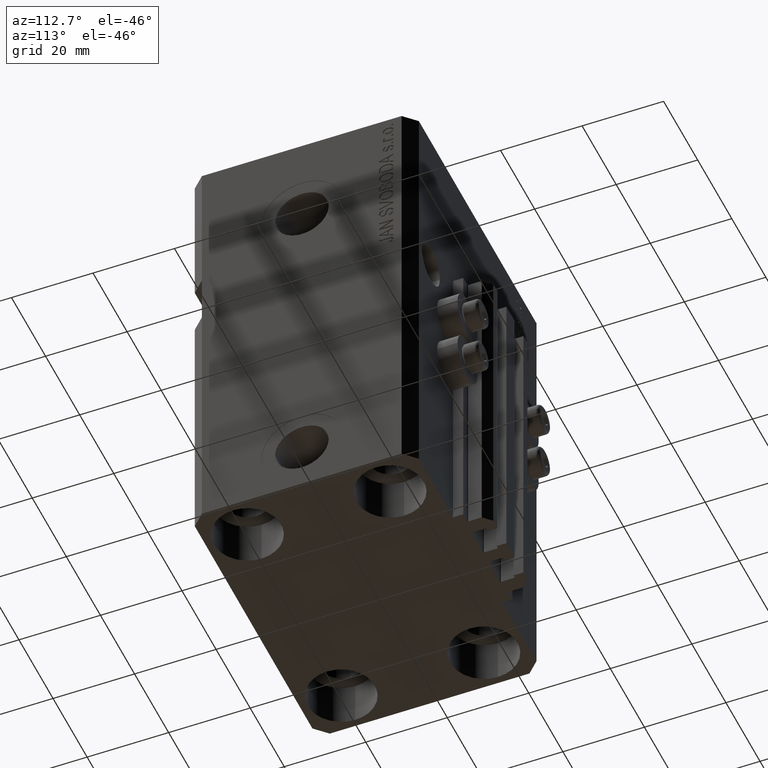
[diagram: clean part render]
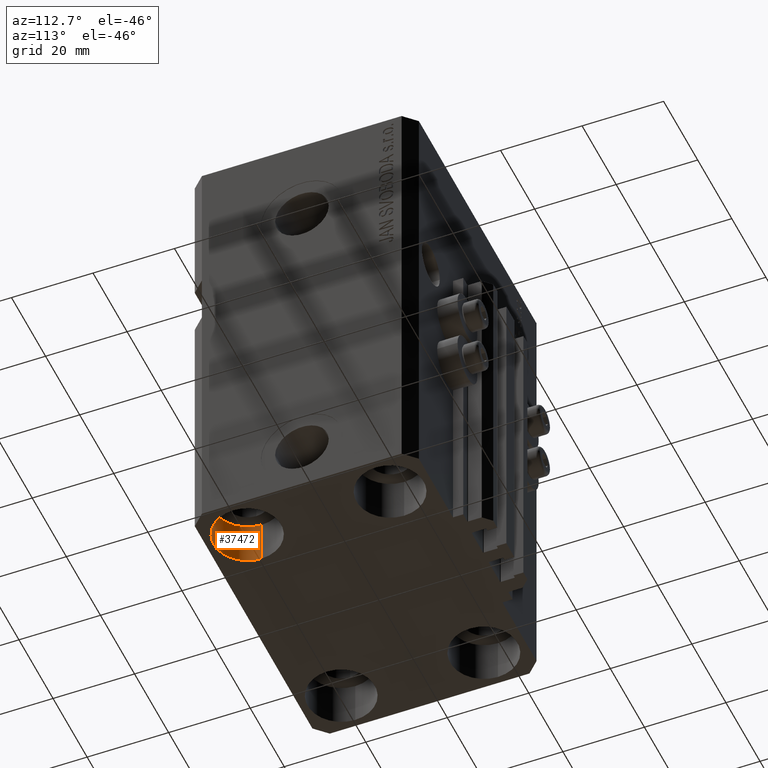
[diagram: same view with one face highlighted and labeled with its STEP entity id]
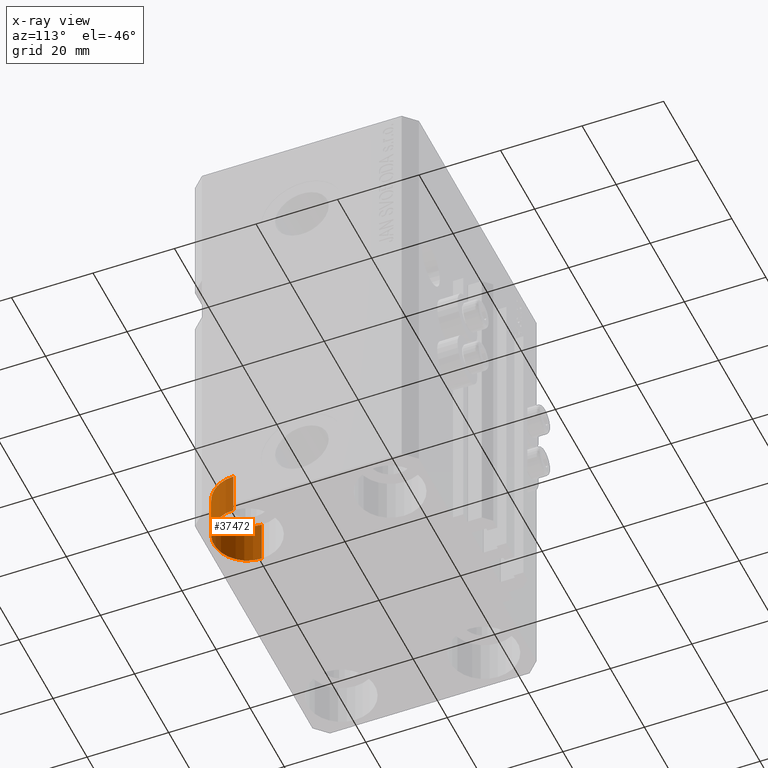
[diagram: x-ray of the same camera — body ghosted, the highlighted face saturated]
A machine part, auxiliary view. The second image highlights one B-rep face of the part: STEP entity #37472.
The next image is the same camera in x-ray: the body ghosted, the highlighted face saturated — about 0% of this face is hidden behind the body in this view.
In plain terms, the highlighted cylindrical surface (edge-blend (fillet) strip) has radius 8.25 mm, axis along (-0, -0, -1).
Its self-contained STEP definition (entity closure, byte-faithful):
#1842 = CARTESIAN_POINT ( 'NONE',  ( 35.75000000000000711, -17.50000000000000000, -99.00000000000000000 ) ) ;
#2335 = DIRECTION ( 'NONE',  ( -0.000000000000000000, -0.000000000000000000, 1.000000000000000000 ) ) ;
#2576 = DIRECTION ( 'NONE',  ( 1.000000000000000000, 0.000000000000000000, 0.000000000000000000 ) ) ;
#3122 = ORIENTED_EDGE ( 'NONE', *, *, #40701, .F. ) ;
#3440 = CARTESIAN_POINT ( 'NONE',  ( 19.25000000000000000, -17.50000000000000000, -99.00000000000000000 ) ) ;
#4888 = EDGE_LOOP ( 'NONE', ( #13530, #20899, #27249, #3122 ) ) ;
#5071 = VERTEX_POINT ( 'NONE', #16232 ) ;
#5879 = AXIS2_PLACEMENT_3D ( 'NONE', #30035, #30505, #44955 ) ;
#5974 = EDGE_CURVE ( 'NONE', #25708, #5071, #14841, .T. ) ;
#5994 = AXIS2_PLACEMENT_3D ( 'NONE', #34752, #2335, #2576 ) ;
#7313 = AXIS2_PLACEMENT_3D ( 'NONE', #12733, #31666, #28126 ) ;
#10112 = LINE ( 'NONE', #1842, #15304 ) ;
#10850 = VERTEX_POINT ( 'NONE', #35652 ) ;
#11226 = DIRECTION ( 'NONE',  ( -0.000000000000000000, -0.000000000000000000, -1.000000000000000000 ) ) ;
#12733 = CARTESIAN_POINT ( 'NONE',  ( 27.50000000000000355, -17.50000000000000000, -99.00000000000000000 ) ) ;
#13530 = ORIENTED_EDGE ( 'NONE', *, *, #5974, .T. ) ;
#14841 = CIRCLE ( 'NONE', #7313, 8.250000000000000000 ) ;
#15304 = VECTOR ( 'NONE', #20525, 1000.000000000000000 ) ;
#15603 = CYLINDRICAL_SURFACE ( 'NONE', #5879, 8.250000000000003553 ) ;
#16129 = EDGE_CURVE ( 'NONE', #19253, #10850, #36231, .T. ) ;
#16232 = CARTESIAN_POINT ( 'NONE',  ( 35.75000000000000711, -17.50000000000000000, -99.00000000000000000 ) ) ;
#19253 = VERTEX_POINT ( 'NONE', #46716 ) ;
#20525 = DIRECTION ( 'NONE',  ( -0.000000000000000000, -0.000000000000000000, -1.000000000000000000 ) ) ;
#20899 = ORIENTED_EDGE ( 'NONE', *, *, #25084, .T. ) ;
#25084 = EDGE_CURVE ( 'NONE', #5071, #10850, #10112, .T. ) ;
#25708 = VERTEX_POINT ( 'NONE', #45978 ) ;
#27249 = ORIENTED_EDGE ( 'NONE', *, *, #16129, .F. ) ;
#28126 = DIRECTION ( 'NONE',  ( 1.000000000000000000, 0.000000000000000000, 0.000000000000000000 ) ) ;
#30035 = CARTESIAN_POINT ( 'NONE',  ( 27.50000000000000355, -17.50000000000000000, -99.00000000000000000 ) ) ;
#30130 = VECTOR ( 'NONE', #11226, 1000.000000000000000 ) ;
#30505 = DIRECTION ( 'NONE',  ( -0.000000000000000000, -0.000000000000000000, -1.000000000000000000 ) ) ;
#31666 = DIRECTION ( 'NONE',  ( -0.000000000000000000, -0.000000000000000000, 1.000000000000000000 ) ) ;
#34752 = CARTESIAN_POINT ( 'NONE',  ( 27.50000000000000355, -17.50000000000000000, -110.0000000000000000 ) ) ;
#35652 = CARTESIAN_POINT ( 'NONE',  ( 35.75000000000000711, -17.50000000000000000, -110.0000000000000000 ) ) ;
#36231 = CIRCLE ( 'NONE', #5994, 8.250000000000000000 ) ;
#36778 = LINE ( 'NONE', #3440, #30130 ) ;
#37472 = ADVANCED_FACE ( 'NONE', ( #45179 ), #15603, .F. ) ;
#40701 = EDGE_CURVE ( 'NONE', #25708, #19253, #36778, .T. ) ;
#44955 = DIRECTION ( 'NONE',  ( -1.000000000000000000, 0.000000000000000000, 0.000000000000000000 ) ) ;
#45179 = FACE_OUTER_BOUND ( 'NONE', #4888, .T. ) ;
#45978 = CARTESIAN_POINT ( 'NONE',  ( 19.25000000000000000, -17.50000000000000000, -99.00000000000000000 ) ) ;
#46716 = CARTESIAN_POINT ( 'NONE',  ( 19.25000000000000000, -17.50000000000000000, -110.0000000000000000 ) ) ;